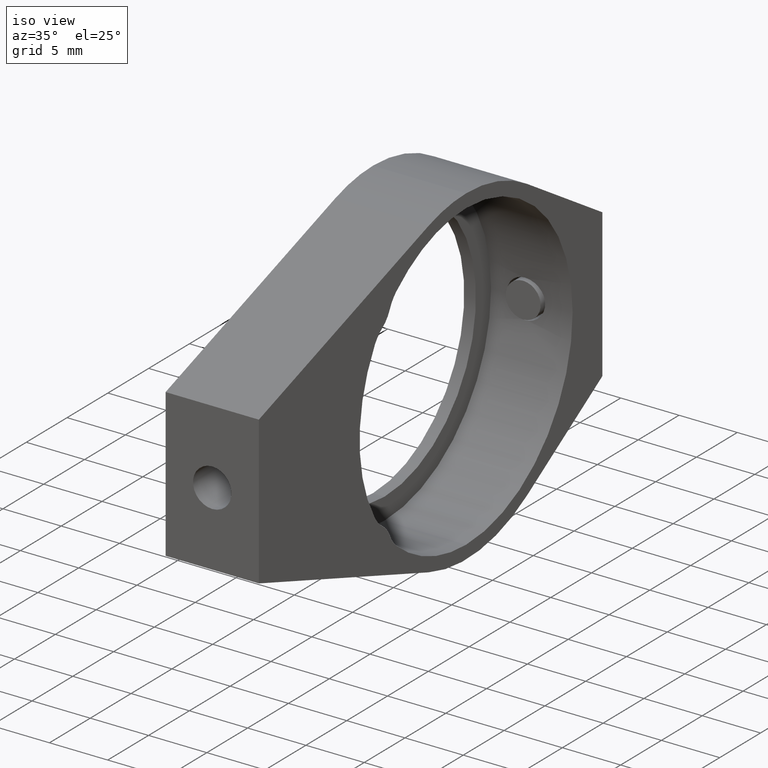
[diagram: clean part render]
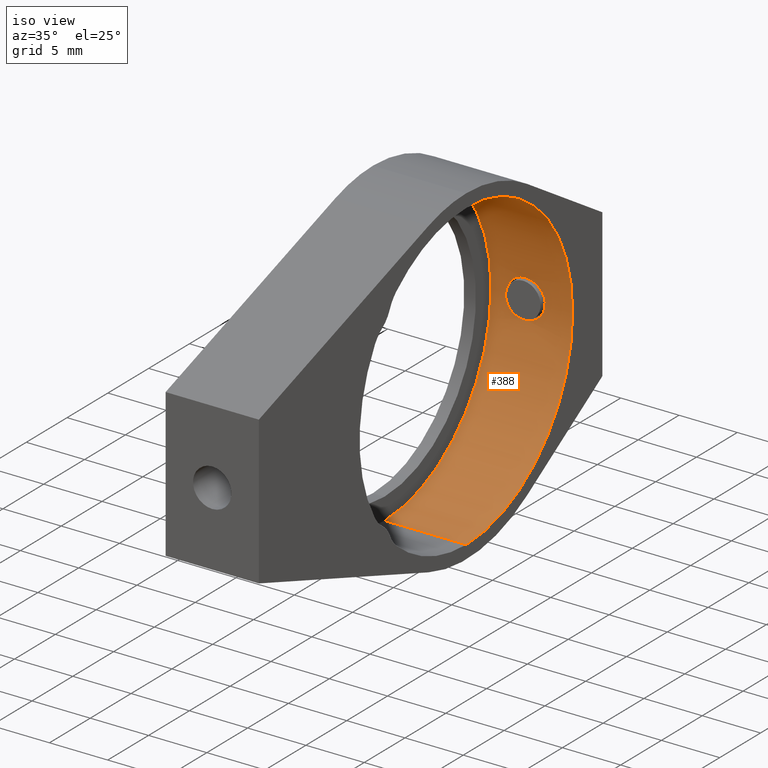
[diagram: same view with one face highlighted and labeled with its STEP entity id]
A machine part, iso view. The second image highlights one B-rep face of the part: STEP entity #388.
In plain terms, the highlighted cylindrical surface (partial cylindrical patch) has radius 13.05 mm, axis along (1, -0, -0).
Its self-contained STEP definition (entity closure, byte-faithful):
#1 = CARTESIAN_POINT ( 'NONE',  ( -11.33260236446032287, 18.36185053568926762, 43.73927878422093585 ) ) ;
#8 = CARTESIAN_POINT ( 'NONE',  ( -9.899109747198430398, 18.46519179594714544, 42.31608545302361790 ) ) ;
#48 = ORIENTED_EDGE ( 'NONE', *, *, #492, .T. ) ;
#76 = CARTESIAN_POINT ( 'NONE',  ( -12.98049232260266272, 18.43923876190305222, 41.27234122640595615 ) ) ;
#92 = CARTESIAN_POINT ( 'NONE',  ( -11.54903037869330085, 18.36047123727967545, 40.45000000000000995 ) ) ;
#158 = CARTESIAN_POINT ( 'NONE',  ( -7.549030378693300847, 5.415201831044820224, 42.10000000000000142 ) ) ;
#190 = EDGE_CURVE ( 'NONE', #192, #552, #205, .T. ) ;
#191 = CYLINDRICAL_SURFACE ( 'NONE', #488, 13.05000000000000249 ) ;
#192 = VERTEX_POINT ( 'NONE', #654 ) ;
#195 = DIRECTION ( 'NONE',  ( 0.0000000000000000000, 0.0000000000000000000, -1.000000000000000000 ) ) ;
#205 = CIRCLE ( 'NONE', #1162, 13.05000000000000249 ) ;
#208 = DIRECTION ( 'NONE',  ( 1.000000000000000000, -0.0000000000000000000, -0.0000000000000000000 ) ) ;
#221 = CARTESIAN_POINT ( 'NONE',  ( -11.54903037869330085, 18.36047123727967545, 43.74999999999999289 ) ) ;
#229 = CARTESIAN_POINT ( 'NONE',  ( -10.81691454996165724, 18.38077313379631050, 43.58263332758755126 ) ) ;
#232 = AXIS2_PLACEMENT_3D ( 'NONE', #158, #945, #834 ) ;
#237 = CARTESIAN_POINT ( 'NONE',  ( -11.43989335712610789, 18.36047123727967900, 43.75000000000000000 ) ) ;
#244 = CARTESIAN_POINT ( 'NONE',  ( -9.909749381650961197, 18.46383410196049013, 41.88341759203810710 ) ) ;
#245 = EDGE_LOOP ( 'NONE', ( #624, #251, #1274, #1439 ) ) ;
#246 = EDGE_CURVE ( 'NONE', #552, #338, #585, .T. ) ;
#248 = CARTESIAN_POINT ( 'NONE',  ( -49.19123164894455158, 5.415201831044822001, 55.15000000000000568 ) ) ;
#251 = ORIENTED_EDGE ( 'NONE', *, *, #190, .T. ) ;
#265 = DIRECTION ( 'NONE',  ( 1.000000000000000000, -0.0000000000000000000, -0.0000000000000000000 ) ) ;
#276 = CARTESIAN_POINT ( 'NONE',  ( -10.30523261409454960, 18.41986091975951823, 41.01036032940764642 ) ) ;
#285 = CARTESIAN_POINT ( 'NONE',  ( -11.54903037869330085, 18.36047123727967545, 40.45000000000000995 ) ) ;
#313 = CARTESIAN_POINT ( 'NONE',  ( -12.86204425981762967, 18.42675318353714786, 43.10504534686784694 ) ) ;
#318 = CARTESIAN_POINT ( 'NONE',  ( -13.19895235710094283, 18.46519196624824843, 41.98973536614333568 ) ) ;
#329 = DIRECTION ( 'NONE',  ( -1.000000000000000000, -0.0000000000000000000, -0.0000000000000000000 ) ) ;
#338 = VERTEX_POINT ( 'NONE', #456 ) ;
#351 = EDGE_CURVE ( 'NONE', #192, #1195, #377, .T. ) ;
#358 = CARTESIAN_POINT ( 'NONE',  ( -11.44128869003516336, 18.36047123727967190, 40.45000000000001705 ) ) ;
#377 = LINE ( 'NONE', #248, #728 ) ;
#388 = ADVANCED_FACE ( 'NONE', ( #551, #1232 ), #191, .F. ) ;
#424 = DIRECTION ( 'NONE',  ( 0.0000000000000000000, 0.0000000000000000000, -1.000000000000000000 ) ) ;
#429 = CARTESIAN_POINT ( 'NONE',  ( -12.37888296162216051, 18.38552625346810032, 40.65776570635641463 ) ) ;
#454 = CARTESIAN_POINT ( 'NONE',  ( -10.72217886153318389, 18.38654283191737093, 43.53193517797777190 ) ) ;
#456 = CARTESIAN_POINT ( 'NONE',  ( -7.549030378693300847, 5.415201831044820224, 29.04999999999999716 ) ) ;
#472 = CARTESIAN_POINT ( 'NONE',  ( -10.45914942591014984, 18.40604343679571997, 40.85641365409959036 ) ) ;
#478 = CARTESIAN_POINT ( 'NONE',  ( -10.06589901774066398, 18.44509015032910071, 41.36888804882885040 ) ) ;
#486 = CARTESIAN_POINT ( 'NONE',  ( -10.81753290168542847, 18.38073826624507490, 40.61706317472603445 ) ) ;
#488 = AXIS2_PLACEMENT_3D ( 'NONE', #545, #208, #424 ) ;
#492 = EDGE_CURVE ( 'NONE', #559, #631, #1285, .T. ) ;
#498 = CARTESIAN_POINT ( 'NONE',  ( -12.79106479652005213, 18.41969742548247169, 41.00848006769773235 ) ) ;
#514 = VECTOR ( 'NONE', #1051, 1000.000000000000000 ) ;
#545 = CARTESIAN_POINT ( 'NONE',  ( -49.19123164894455158, 5.415201831044820224, 42.10000000000000142 ) ) ;
#551 = FACE_OUTER_BOUND ( 'NONE', #245, .T. ) ;
#552 = VERTEX_POINT ( 'NONE', #810 ) ;
#558 = CARTESIAN_POINT ( 'NONE',  ( -11.76725205645334782, 18.36047123727967190, 43.75000000000000000 ) ) ;
#559 = VERTEX_POINT ( 'NONE', #1144 ) ;
#570 = EDGE_CURVE ( 'NONE', #631, #559, #1392, .T. ) ;
#576 = CARTESIAN_POINT ( 'NONE',  ( -10.45808873958595342, 18.40613796400805313, 43.34254103017283910 ) ) ;
#585 = LINE ( 'NONE', #1170, #514 ) ;
#604 = CARTESIAN_POINT ( 'NONE',  ( -9.951934231971559797, 18.45860162006422200, 41.67170801451663920 ) ) ;
#624 = ORIENTED_EDGE ( 'NONE', *, *, #351, .F. ) ;
#631 = VERTEX_POINT ( 'NONE', #1188 ) ;
#654 = CARTESIAN_POINT ( 'NONE',  ( -14.54903037869330262, 5.415201831044822001, 55.15000000000000568 ) ) ;
#677 = CARTESIAN_POINT ( 'NONE',  ( -11.98405163235356952, 18.36626263856940966, 43.70605770696815995 ) ) ;
#686 = CARTESIAN_POINT ( 'NONE',  ( -10.54288971628803750, 18.39920440968105808, 43.41217481793201216 ) ) ;
#728 = VECTOR ( 'NONE', #265, 1000.000000000000000 ) ;
#733 = CARTESIAN_POINT ( 'NONE',  ( -12.79250748176120922, 18.41983611171562885, 43.18987092481138035 ) ) ;
#737 = CARTESIAN_POINT ( 'NONE',  ( -10.11754314545301270, 18.43924229381086377, 41.27241934944163404 ) ) ;
#760 = CARTESIAN_POINT ( 'NONE',  ( -12.56278030021350567, 18.39921945218619115, 40.78050307793638751 ) ) ;
#785 = CARTESIAN_POINT ( 'NONE',  ( -14.54903037869330262, 5.415201831044820224, 42.10000000000000142 ) ) ;
#791 = CARTESIAN_POINT ( 'NONE',  ( -7.549030378693300847, 5.415201831044822001, 55.15000000000000568 ) ) ;
#794 = CARTESIAN_POINT ( 'NONE',  ( -11.01669565972309606, 18.37102777434440171, 43.66550787852749238 ) ) ;
#810 = CARTESIAN_POINT ( 'NONE',  ( -14.54903037869330262, 5.415201831044820224, 29.04999999999999716 ) ) ;
#817 = CARTESIAN_POINT ( 'NONE',  ( -9.983135606046618094, 18.45476997643145722, 41.56879676207283580 ) ) ;
#834 = DIRECTION ( 'NONE',  ( 0.0000000000000000000, 0.0000000000000000000, -1.000000000000000000 ) ) ;
#836 = CARTESIAN_POINT ( 'NONE',  ( -13.18847154496946672, 18.46385451408264444, 42.31518716243382272 ) ) ;
#845 = CARTESIAN_POINT ( 'NONE',  ( -13.03226211892634367, 18.44510170051920639, 42.83089668381388293 ) ) ;
#881 = CARTESIAN_POINT ( 'NONE',  ( -13.14665170684549800, 18.45866622563860204, 42.52623813108457540 ) ) ;
#905 = ORIENTED_EDGE ( 'NONE', *, *, #570, .T. ) ;
#939 = CARTESIAN_POINT ( 'NONE',  ( -11.33184066631439890, 18.36186075234876469, 40.46080014636911670 ) ) ;
#945 = DIRECTION ( 'NONE',  ( 1.000000000000000000, -0.0000000000000000000, 0.0000000000000000000 ) ) ;
#963 = CARTESIAN_POINT ( 'NONE',  ( -13.03123038581340687, 18.44498380716887809, 41.36700675848476294 ) ) ;
#968 = CARTESIAN_POINT ( 'NONE',  ( -10.23696364370730549, 18.42665806752710367, 41.09375633415570661 ) ) ;
#1007 = CARTESIAN_POINT ( 'NONE',  ( -11.76446206013426554, 18.36047123727967900, 40.45000000000001705 ) ) ;
#1020 = CARTESIAN_POINT ( 'NONE',  ( -11.54903037869330085, 18.36047123727967545, 43.74999999999999289 ) ) ;
#1025 = CARTESIAN_POINT ( 'NONE',  ( -11.12155462475436885, 18.36709771992273232, 43.69729161318028332 ) ) ;
#1031 = CARTESIAN_POINT ( 'NONE',  ( -10.23003685451535105, 18.42661281217939617, 43.11439813169267410 ) ) ;
#1033 = EDGE_CURVE ( 'NONE', #338, #1195, #1098, .T. ) ;
#1051 = DIRECTION ( 'NONE',  ( 1.000000000000000000, -0.0000000000000000000, -0.0000000000000000000 ) ) ;
#1098 = CIRCLE ( 'NONE', #232, 13.05000000000000249 ) ;
#1111 = CARTESIAN_POINT ( 'NONE',  ( -13.19910756530518903, 18.46521159026918468, 42.20791710955683840 ) ) ;
#1144 = CARTESIAN_POINT ( 'NONE',  ( -11.54903037869330085, 18.36047123727967545, 40.45000000000000995 ) ) ;
#1157 = CARTESIAN_POINT ( 'NONE',  ( -12.38084611226615728, 18.38565479012387627, 43.54109244485862007 ) ) ;
#1162 = AXIS2_PLACEMENT_3D ( 'NONE', #785, #329, #195 ) ;
#1167 = CARTESIAN_POINT ( 'NONE',  ( -11.01730478375805156, 18.37100279439501094, 40.53428671899571611 ) ) ;
#1170 = CARTESIAN_POINT ( 'NONE',  ( -49.19123164894455158, 5.415201831044820224, 29.04999999999999716 ) ) ;
#1175 = CARTESIAN_POINT ( 'NONE',  ( -11.12017000968801206, 18.36714095495669596, 40.50305719726615905 ) ) ;
#1188 = CARTESIAN_POINT ( 'NONE',  ( -11.54903037869330085, 18.36047123727967545, 43.74999999999999289 ) ) ;
#1194 = CARTESIAN_POINT ( 'NONE',  ( -12.56464411372609113, 18.39936838617509807, 43.41804571074992225 ) ) ;
#1195 = VERTEX_POINT ( 'NONE', #791 ) ;
#1219 = CARTESIAN_POINT ( 'NONE',  ( -12.86074057656267478, 18.42662136631047076, 41.09326334169583106 ) ) ;
#1232 = FACE_BOUND ( 'NONE', #1384, .T. ) ;
#1262 = CARTESIAN_POINT ( 'NONE',  ( -10.10714279806841098, 18.44026834927473146, 42.93045026213537341 ) ) ;
#1269 = CARTESIAN_POINT ( 'NONE',  ( -9.898990861862206003, 18.46520682742543684, 41.99286762297975883 ) ) ;
#1274 = ORIENTED_EDGE ( 'NONE', *, *, #246, .T. ) ;
#1276 = CARTESIAN_POINT ( 'NONE',  ( -10.54239370734028469, 18.39924516928685350, 40.78823533721174499 ) ) ;
#1285 = B_SPLINE_CURVE_WITH_KNOTS ( 'NONE', 3,
 ( #92, #1007, #1461, #429, #760, #498, #1219, #76, #963, #1349, #1468, #1453, #318, #1111, #836, #881, #1418, #845, #1303, #313, #733, #1194, #1157, #677, #558, #1020 ),
 .UNSPECIFIED., .F., .F.,
 ( 4, 2, 2, 2, 2, 2, 2, 2, 2, 2, 2, 2, 4 ),
 ( 0.005163815604581757472, 0.005809137701001146695, 0.006454459797420535917, 0.006777120845630222289, 0.007099781893839909527, 0.007422442942049595899, 0.007745103990259282270, 0.008067765038468970376, 0.008390426086678656747, 0.008713087134888344854, 0.009035748183098031225, 0.009681070279517405702, 0.01032639237593677844 ),
 .UNSPECIFIED. ) ;
#1303 = CARTESIAN_POINT ( 'NONE',  ( -12.98165411727815766, 18.43936683011008526, 42.92565781346089437 ) ) ;
#1349 = CARTESIAN_POINT ( 'NONE',  ( -13.11422549474912103, 18.45468561053339585, 41.56674564991097753 ) ) ;
#1374 = CARTESIAN_POINT ( 'NONE',  ( -9.942526593251958644, 18.45951754409741596, 42.53339707013733317 ) ) ;
#1384 = EDGE_LOOP ( 'NONE', ( #905, #48 ) ) ;
#1392 = B_SPLINE_CURVE_WITH_KNOTS ( 'NONE', 3,
 ( #221, #237, #1, #1025, #794, #229, #454, #686, #576, #1031, #1262, #1374, #8, #1269, #244, #604, #817, #478, #737, #968, #276, #472, #1276, #1422, #486, #1167, #1175, #939, #358, #285 ),
 .UNSPECIFIED., .F., .F.,
 ( 4, 2, 2, 2, 2, 2, 2, 2, 2, 2, 2, 2, 2, 2, 4 ),
 ( 0.0000000000000000000, 0.0003227384752863653714, 0.0006454769505727307429, 0.0009682154258590961685, 0.001290953901145461486, 0.001936430851718191470, 0.002581907802290921670, 0.002904646277577276579, 0.003227384752863630621, 0.003550123228149985096, 0.003872861703436339138, 0.004195600178722693613, 0.004518338654009048522, 0.004841077129295402563, 0.005163815604581757472 ),
 .UNSPECIFIED. ) ;
#1418 = CARTESIAN_POINT ( 'NONE',  ( -13.11494630060785838, 18.45477264023173447, 42.63112492234815676 ) ) ;
#1422 = CARTESIAN_POINT ( 'NONE',  ( -10.72100869889292873, 18.38661979221831189, 40.66876835682226243 ) ) ;
#1439 = ORIENTED_EDGE ( 'NONE', *, *, #1033, .T. ) ;
#1453 = CARTESIAN_POINT ( 'NONE',  ( -13.18815593027257371, 18.46381463498446251, 41.88243788021612346 ) ) ;
#1461 = CARTESIAN_POINT ( 'NONE',  ( -11.98172688750883985, 18.36618197087429039, 40.49330500765885432 ) ) ;
#1468 = CARTESIAN_POINT ( 'NONE',  ( -13.14604722535499270, 18.45859197095165527, 41.67151074542800870 ) ) ;